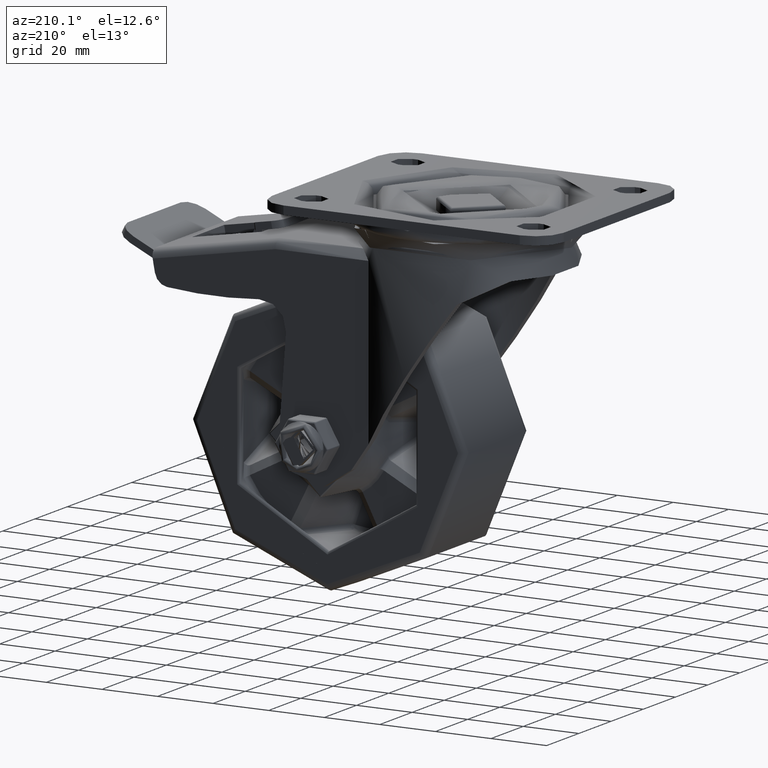
[diagram: clean part render]
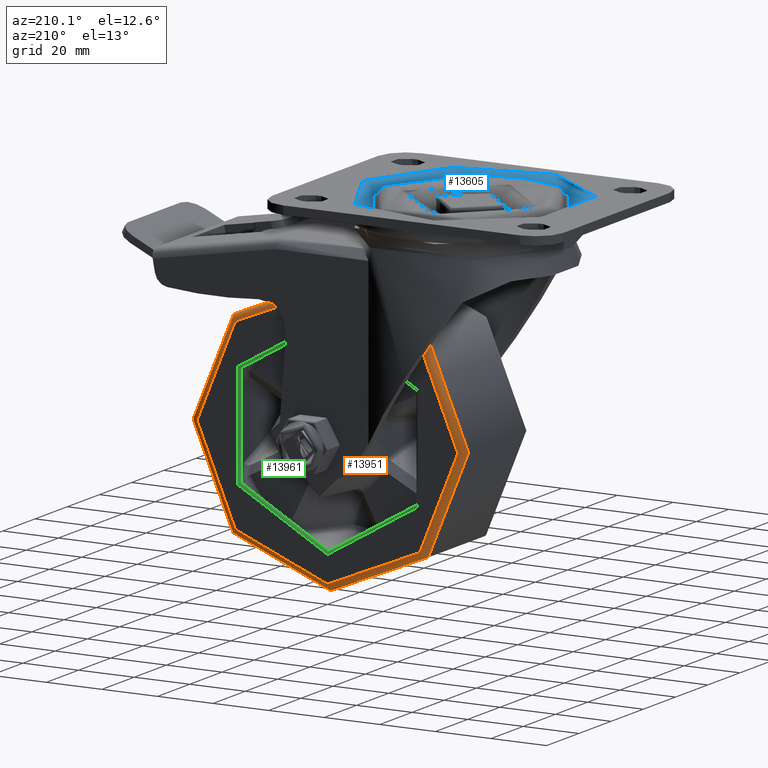
[diagram: same view with three faces highlighted in distinct colors, each labeled with its STEP entity id]
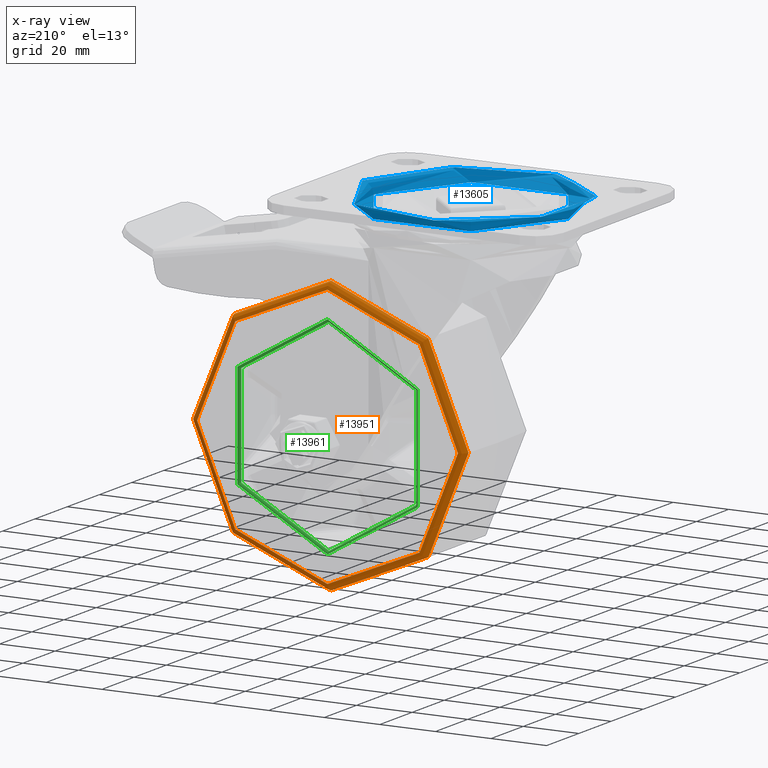
[diagram: x-ray of the same camera — body ghosted, the three highlighted faces saturated]
A machine part, auxiliary view with three faces highlighted in distinct colors.
The next image is the same camera in x-ray (body ghosted, the three faces saturated) — at least one of them is partly hidden behind the body in this view.
Their STEP definitions:

[orange] entity #13951 — the highlighted toroidal blend (fillet) surface has major radius 46.9205 mm and minor (blend) radius 2.5 mm.
#3859=FACE_OUTER_BOUND('',#4739,.T.);
#4739=EDGE_LOOP('',(#11215,#11216,#11217,#11218));
#5515=CIRCLE('',#15327,49.4150579103696);
#5516=CIRCLE('',#15329,2.50000000000011);
#5517=CIRCLE('',#15330,46.9205340416502);
#6544=VERTEX_POINT('',#24966);
#6545=VERTEX_POINT('',#24970);
#8173=EDGE_CURVE('',#6544,#6544,#5515,.T.);
#8174=EDGE_CURVE('',#6544,#6545,#5516,.T.);
#8175=EDGE_CURVE('',#6545,#6545,#5517,.T.);
#11215=ORIENTED_EDGE('',*,*,#8173,.F.);
#11216=ORIENTED_EDGE('',*,*,#8174,.T.);
#11217=ORIENTED_EDGE('',*,*,#8175,.T.);
#11218=ORIENTED_EDGE('',*,*,#8174,.F.);
#13545=TOROIDAL_SURFACE('',#15328,46.9205340416502,2.50000000000011);
#13951=ADVANCED_FACE('',(#3859),#13545,.T.);
#15327=AXIS2_PLACEMENT_3D('',#24968,#18075,#18076);
#15328=AXIS2_PLACEMENT_3D('',#24969,#18077,#18078);
#15329=AXIS2_PLACEMENT_3D('',#24971,#18079,#18080);
#15330=AXIS2_PLACEMENT_3D('',#24972,#18081,#18082);
#18075=DIRECTION('center_axis',(0.,-1.,0.));
#18076=DIRECTION('ref_axis',(0.,0.,1.));
#18077=DIRECTION('center_axis',(0.,-1.,0.));
#18078=DIRECTION('ref_axis',(0.,0.,-1.));
#18079=DIRECTION('center_axis',(-1.,0.,-1.22464679914735E-16));
#18080=DIRECTION('ref_axis',(-1.22464679914735E-16,0.,1.));
#18081=DIRECTION('center_axis',(0.,-1.,0.));
#18082=DIRECTION('ref_axis',(0.,0.,1.));
#24966=CARTESIAN_POINT('',(0.,17.6653803748621,49.4150579103696));
#24968=CARTESIAN_POINT('Origin',(0.,17.6653803748621,0.));
#24969=CARTESIAN_POINT('Origin',(0.,17.4999999999999,0.));
#24970=CARTESIAN_POINT('',(0.,20.,46.9205340416502));
#24971=CARTESIAN_POINT('Origin',(-5.74610818283913E-15,17.4999999999999,
46.9205340416502));
#24972=CARTESIAN_POINT('Origin',(0.,20.,0.));

[blue] entity #13605 — the highlighted toroidal blend (fillet) surface has major radius 39 mm and minor (blend) radius 4 mm.
#3513=FACE_OUTER_BOUND('',#4359,.T.);
#4359=EDGE_LOOP('',(#9387,#9388,#9389,#9390));
#5287=CIRCLE('',#14684,39.);
#5288=CIRCLE('',#14685,4.);
#5289=CIRCLE('',#14686,35.);
#5988=VERTEX_POINT('',#20205);
#5989=VERTEX_POINT('',#20207);
#7285=EDGE_CURVE('',#5988,#5988,#5287,.T.);
#7286=EDGE_CURVE('',#5988,#5989,#5288,.T.);
#7287=EDGE_CURVE('',#5989,#5989,#5289,.T.);
#9387=ORIENTED_EDGE('',*,*,#7285,.T.);
#9388=ORIENTED_EDGE('',*,*,#7286,.T.);
#9389=ORIENTED_EDGE('',*,*,#7287,.T.);
#9390=ORIENTED_EDGE('',*,*,#7286,.F.);
#13516=TOROIDAL_SURFACE('',#14683,39.,4.);
#13605=ADVANCED_FACE('',(#3513),#13516,.T.);
#14683=AXIS2_PLACEMENT_3D('',#20204,#16262,#16263);
#14684=AXIS2_PLACEMENT_3D('',#20206,#16264,#16265);
#14685=AXIS2_PLACEMENT_3D('',#20208,#16266,#16267);
#14686=AXIS2_PLACEMENT_3D('',#20209,#16268,#16269);
#16262=DIRECTION('center_axis',(0.,0.,-1.));
#16263=DIRECTION('ref_axis',(-1.,0.,0.));
#16264=DIRECTION('center_axis',(0.,0.,1.));
#16265=DIRECTION('ref_axis',(1.22464679914735E-16,-1.,0.));
#16266=DIRECTION('center_axis',(-1.22464679914735E-16,-1.,0.));
#16267=DIRECTION('ref_axis',(1.,-1.22464679914735E-16,0.));
#16268=DIRECTION('center_axis',(0.,0.,-1.));
#16269=DIRECTION('ref_axis',(0.,1.,0.));
#20204=CARTESIAN_POINT('Origin',(0.,0.,-4.));
#20205=CARTESIAN_POINT('',(39.,-4.77612251667468E-15,0.));
#20206=CARTESIAN_POINT('Origin',(0.,0.,0.));
#20207=CARTESIAN_POINT('',(35.,-4.28626379701574E-15,-4.));
#20208=CARTESIAN_POINT('Origin',(39.,-4.77612251667468E-15,-4.));
#20209=CARTESIAN_POINT('Origin',(0.,0.,-4.));

[green] entity #13961 — the highlighted toroidal blend (fillet) surface has major radius 37.5 mm and minor (blend) radius 1 mm.
#3869=FACE_OUTER_BOUND('',#4751,.T.);
#4751=EDGE_LOOP('',(#11251,#11252,#11253,#11254));
#5535=CIRCLE('',#15360,36.5);
#5536=CIRCLE('',#15361,1.);
#5537=CIRCLE('',#15362,37.5);
#6560=VERTEX_POINT('',#25020);
#6561=VERTEX_POINT('',#25022);
#8197=EDGE_CURVE('',#6560,#6560,#5535,.T.);
#8198=EDGE_CURVE('',#6560,#6561,#5536,.T.);
#8199=EDGE_CURVE('',#6561,#6561,#5537,.T.);
#11251=ORIENTED_EDGE('',*,*,#8197,.T.);
#11252=ORIENTED_EDGE('',*,*,#8198,.T.);
#11253=ORIENTED_EDGE('',*,*,#8199,.T.);
#11254=ORIENTED_EDGE('',*,*,#8198,.F.);
#13549=TOROIDAL_SURFACE('',#15359,37.5,1.);
#13961=ADVANCED_FACE('',(#3869),#13549,.T.);
#15359=AXIS2_PLACEMENT_3D('',#25019,#18143,#18144);
#15360=AXIS2_PLACEMENT_3D('',#25021,#18145,#18146);
#15361=AXIS2_PLACEMENT_3D('',#25023,#18147,#18148);
#15362=AXIS2_PLACEMENT_3D('',#25024,#18149,#18150);
#18143=DIRECTION('center_axis',(0.,1.,6.93889390390724E-16));
#18144=DIRECTION('ref_axis',(0.,-6.45947941600091E-16,1.));
#18145=DIRECTION('center_axis',(0.,-1.,-6.93889390390724E-16));
#18146=DIRECTION('ref_axis',(0.,-6.93889390390724E-16,1.));
#18147=DIRECTION('center_axis',(-1.,-8.49769420904308E-32,1.22464679914735E-16));
#18148=DIRECTION('ref_axis',(-1.22464679914735E-16,6.92087080285812E-16,
-1.));
#18149=DIRECTION('center_axis',(0.,1.,6.93889390390724E-16));
#18150=DIRECTION('ref_axis',(0.,-6.93889390390724E-16,1.));
#25019=CARTESIAN_POINT('Origin',(0.,19.,0.));
#25020=CARTESIAN_POINT('',(4.46996081688784E-15,19.,-36.5));
#25021=CARTESIAN_POINT('Origin',(0.,19.,0.));
#25022=CARTESIAN_POINT('',(-4.59242549680257E-15,20.0000000000001,-37.5));
#25023=CARTESIAN_POINT('Origin',(-4.59242549680258E-15,19.,-37.5));
#25024=CARTESIAN_POINT('Origin',(0.,20.,6.93889390390744E-16));